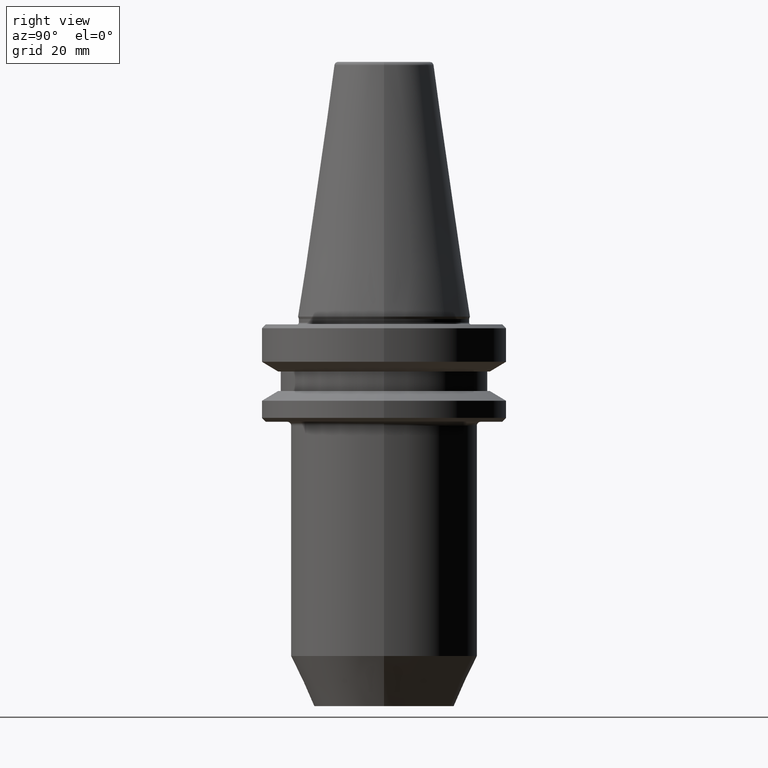
[diagram: clean part render]
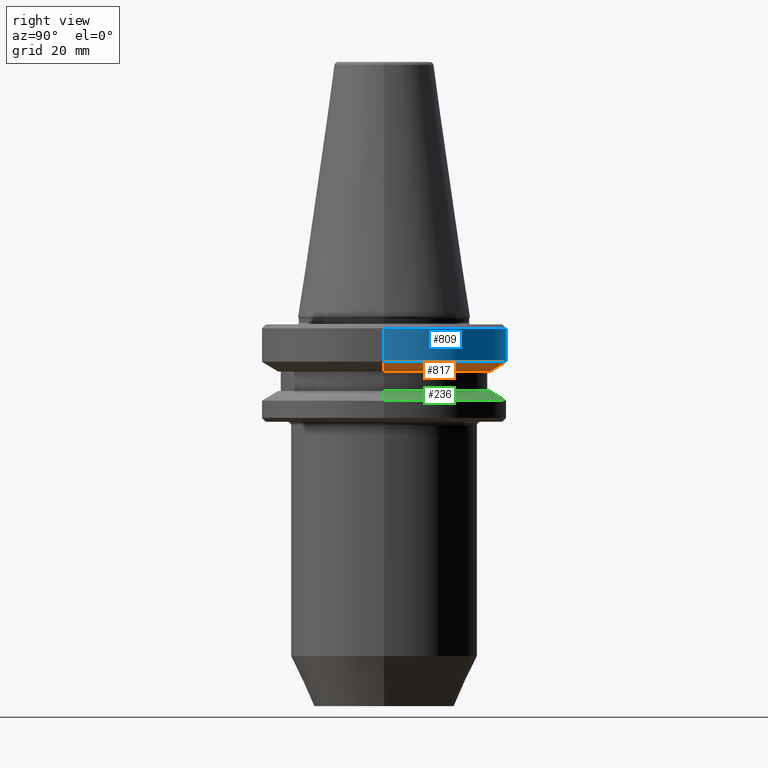
[diagram: same view with three faces highlighted in distinct colors, each labeled with its STEP entity id]
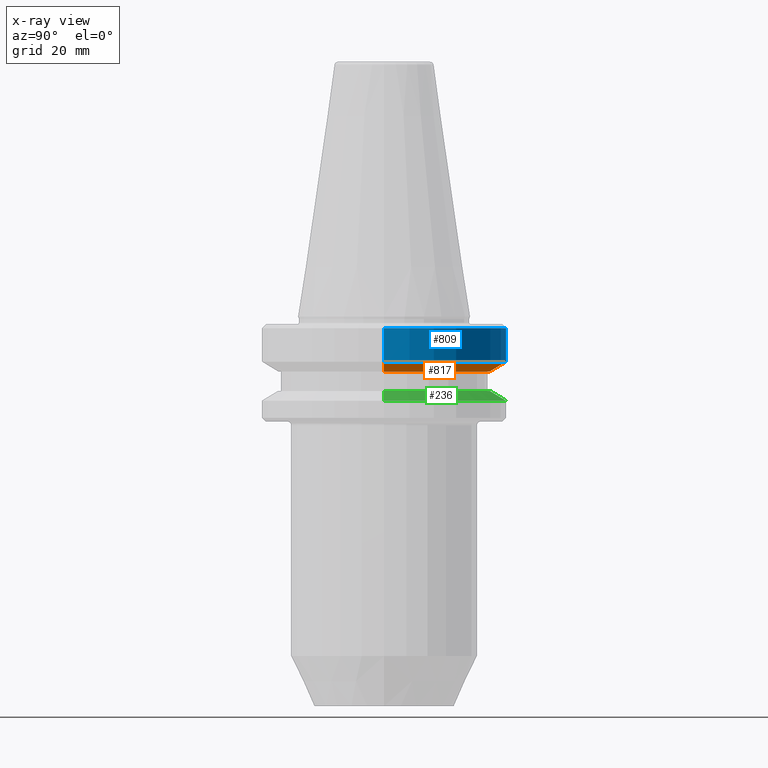
[diagram: x-ray of the same camera — body ghosted, the three highlighted faces saturated]
A machine part, right view with three faces highlighted in distinct colors.
The next image is the same camera in x-ray (body ghosted, the three faces saturated) — at least one of them is partly hidden behind the body in this view.
Their STEP definitions:

[orange] entity #817 — the highlighted conical surface has half-angle 60 deg.
#9 = CARTESIAN_POINT ( 'NONE',  ( 31.49999999999986100, 0.0000000000000000000, -10.91114478202370800 ) ) ;
#26 = VERTEX_POINT ( 'NONE', #827 ) ;
#28 = ORIENTED_EDGE ( 'NONE', *, *, #343, .T. ) ;
#61 = CARTESIAN_POINT ( 'NONE',  ( 0.0000000000000000000, 0.0000000000000000000, -13.41128678834002700 ) ) ;
#101 = CARTESIAN_POINT ( 'NONE',  ( -27.16962701892278200, 3.327319676275122900E-015, -13.41128678834002700 ) ) ;
#122 = DIRECTION ( 'NONE',  ( -0.0000000000000000000, -0.0000000000000000000, 1.000000000000000000 ) ) ;
#135 = AXIS2_PLACEMENT_3D ( 'NONE', #944, #403, #776 ) ;
#151 = DIRECTION ( 'NONE',  ( 1.000000000000000000, 0.0000000000000000000, 0.0000000000000000000 ) ) ;
#193 = VERTEX_POINT ( 'NONE', #906 ) ;
#242 = DIRECTION ( 'NONE',  ( -0.0000000000000000000, -0.0000000000000000000, 1.000000000000000000 ) ) ;
#248 = ORIENTED_EDGE ( 'NONE', *, *, #270, .F. ) ;
#249 = LINE ( 'NONE', #691, #658 ) ;
#254 = CARTESIAN_POINT ( 'NONE',  ( 27.16962701892278200, 0.0000000000000000000, -13.41128678834002700 ) ) ;
#270 = EDGE_CURVE ( 'NONE', #587, #193, #411, .T. ) ;
#343 = EDGE_CURVE ( 'NONE', #372, #26, #970, .T. ) ;
#369 = AXIS2_PLACEMENT_3D ( 'NONE', #61, #122, #779 ) ;
#372 = VERTEX_POINT ( 'NONE', #254 ) ;
#402 = CONICAL_SURFACE ( 'NONE', #135, 27.16962701892278200, 1.047197551196600300 ) ;
#403 = DIRECTION ( 'NONE',  ( -0.0000000000000000000, -0.0000000000000000000, 1.000000000000000000 ) ) ;
#411 = CIRCLE ( 'NONE', #1004, 31.49999999999986100 ) ;
#454 = DIRECTION ( 'NONE',  ( -0.8660254037844398200, 1.060575238724908400E-016, 0.4999999999999977200 ) ) ;
#587 = VERTEX_POINT ( 'NONE', #9 ) ;
#653 = ORIENTED_EDGE ( 'NONE', *, *, #804, .F. ) ;
#658 = VECTOR ( 'NONE', #781, 1000.000000000000100 ) ;
#691 = CARTESIAN_POINT ( 'NONE',  ( 27.16962701892278200, 0.0000000000000000000, -13.41128678834002700 ) ) ;
#694 = EDGE_LOOP ( 'NONE', ( #28, #717, #248, #653 ) ) ;
#717 = ORIENTED_EDGE ( 'NONE', *, *, #869, .T. ) ;
#737 = VECTOR ( 'NONE', #454, 1000.000000000000100 ) ;
#776 = DIRECTION ( 'NONE',  ( 1.000000000000000000, 0.0000000000000000000, 0.0000000000000000000 ) ) ;
#779 = DIRECTION ( 'NONE',  ( 1.000000000000000000, 0.0000000000000000000, 0.0000000000000000000 ) ) ;
#781 = DIRECTION ( 'NONE',  ( 0.8660254037844398200, 0.0000000000000000000, 0.4999999999999977200 ) ) ;
#804 = EDGE_CURVE ( 'NONE', #372, #587, #249, .T. ) ;
#817 = ADVANCED_FACE ( 'NONE', ( #895 ), #402, .T. ) ;
#827 = CARTESIAN_POINT ( 'NONE',  ( -27.16962701892278200, 3.592478546794634700E-015, -13.41128678834002700 ) ) ;
#869 = EDGE_CURVE ( 'NONE', #26, #193, #949, .T. ) ;
#895 = FACE_OUTER_BOUND ( 'NONE', #694, .T. ) ;
#906 = CARTESIAN_POINT ( 'NONE',  ( -31.49999999999986100, 3.857637417314145300E-015, -10.91114478202370800 ) ) ;
#944 = CARTESIAN_POINT ( 'NONE',  ( 0.0000000000000000000, 0.0000000000000000000, -13.41128678834002700 ) ) ;
#949 = LINE ( 'NONE', #101, #737 ) ;
#970 = CIRCLE ( 'NONE', #369, 27.16962701892278200 ) ;
#1004 = AXIS2_PLACEMENT_3D ( 'NONE', #1040, #242, #151 ) ;
#1040 = CARTESIAN_POINT ( 'NONE',  ( 0.0000000000000000000, 0.0000000000000000000, -10.91114478202370800 ) ) ;

[blue] entity #809 — the highlighted cylindrical surface (partial cylindrical patch) has radius 31.5 mm, axis along (-0, -0, 1).
#9 = CARTESIAN_POINT ( 'NONE',  ( 31.49999999999986100, 0.0000000000000000000, -10.91114478202370800 ) ) ;
#25 = LINE ( 'NONE', #664, #673 ) ;
#64 = DIRECTION ( 'NONE',  ( -0.0000000000000000000, -0.0000000000000000000, 1.000000000000000000 ) ) ;
#114 = CIRCLE ( 'NONE', #324, 31.49999999999986100 ) ;
#125 = CARTESIAN_POINT ( 'NONE',  ( -31.49999999999986100, 3.857637417314145300E-015, -2.311286788340083400 ) ) ;
#127 = AXIS2_PLACEMENT_3D ( 'NONE', #397, #702, #1008 ) ;
#151 = DIRECTION ( 'NONE',  ( 1.000000000000000000, 0.0000000000000000000, 0.0000000000000000000 ) ) ;
#180 = DIRECTION ( 'NONE',  ( 1.000000000000000000, 0.0000000000000000000, 0.0000000000000000000 ) ) ;
#186 = CARTESIAN_POINT ( 'NONE',  ( 31.49999999999986100, 0.0000000000000000000, -2.311286788340083400 ) ) ;
#193 = VERTEX_POINT ( 'NONE', #906 ) ;
#242 = DIRECTION ( 'NONE',  ( -0.0000000000000000000, -0.0000000000000000000, 1.000000000000000000 ) ) ;
#259 = ORIENTED_EDGE ( 'NONE', *, *, #458, .F. ) ;
#270 = EDGE_CURVE ( 'NONE', #587, #193, #411, .T. ) ;
#276 = ORIENTED_EDGE ( 'NONE', *, *, #385, .T. ) ;
#324 = AXIS2_PLACEMENT_3D ( 'NONE', #711, #829, #180 ) ;
#385 = EDGE_CURVE ( 'NONE', #193, #926, #720, .T. ) ;
#397 = CARTESIAN_POINT ( 'NONE',  ( 0.0000000000000000000, 0.0000000000000000000, 82.74845858742440900 ) ) ;
#411 = CIRCLE ( 'NONE', #1004, 31.49999999999986100 ) ;
#455 = FACE_OUTER_BOUND ( 'NONE', #942, .T. ) ;
#458 = EDGE_CURVE ( 'NONE', #587, #964, #25, .T. ) ;
#464 = ORIENTED_EDGE ( 'NONE', *, *, #270, .T. ) ;
#467 = EDGE_CURVE ( 'NONE', #964, #926, #114, .T. ) ;
#490 = ORIENTED_EDGE ( 'NONE', *, *, #467, .F. ) ;
#587 = VERTEX_POINT ( 'NONE', #9 ) ;
#634 = DIRECTION ( 'NONE',  ( -0.0000000000000000000, -0.0000000000000000000, 1.000000000000000000 ) ) ;
#664 = CARTESIAN_POINT ( 'NONE',  ( 31.49999999999986100, 0.0000000000000000000, 82.74845858742440900 ) ) ;
#673 = VECTOR ( 'NONE', #64, 1000.000000000000000 ) ;
#702 = DIRECTION ( 'NONE',  ( -0.0000000000000000000, -0.0000000000000000000, 1.000000000000000000 ) ) ;
#711 = CARTESIAN_POINT ( 'NONE',  ( 0.0000000000000000000, 0.0000000000000000000, -2.311286788340083400 ) ) ;
#720 = LINE ( 'NONE', #903, #936 ) ;
#809 = ADVANCED_FACE ( 'NONE', ( #455 ), #841, .T. ) ;
#829 = DIRECTION ( 'NONE',  ( -0.0000000000000000000, -0.0000000000000000000, 1.000000000000000000 ) ) ;
#841 = CYLINDRICAL_SURFACE ( 'NONE', #127, 31.49999999999986100 ) ;
#903 = CARTESIAN_POINT ( 'NONE',  ( -31.49999999999986100, 3.857637417314145300E-015, 82.74845858742440900 ) ) ;
#906 = CARTESIAN_POINT ( 'NONE',  ( -31.49999999999986100, 3.857637417314145300E-015, -10.91114478202370800 ) ) ;
#926 = VERTEX_POINT ( 'NONE', #125 ) ;
#936 = VECTOR ( 'NONE', #634, 1000.000000000000000 ) ;
#942 = EDGE_LOOP ( 'NONE', ( #464, #276, #490, #259 ) ) ;
#964 = VERTEX_POINT ( 'NONE', #186 ) ;
#1004 = AXIS2_PLACEMENT_3D ( 'NONE', #1040, #242, #151 ) ;
#1008 = DIRECTION ( 'NONE',  ( 1.000000000000000000, 0.0000000000000000000, 0.0000000000000000000 ) ) ;
#1040 = CARTESIAN_POINT ( 'NONE',  ( 0.0000000000000000000, 0.0000000000000000000, -10.91114478202370800 ) ) ;

[green] entity #236 — the highlighted conical surface has half-angle 60 deg.
#50 = CARTESIAN_POINT ( 'NONE',  ( 27.16962701892167300, 3.592478546794586600E-015, -18.41128678844344800 ) ) ;
#205 = CARTESIAN_POINT ( 'NONE',  ( 0.0000000000000000000, 0.0000000000000000000, -20.91142879476059900 ) ) ;
#236 = ADVANCED_FACE ( 'NONE', ( #462 ), #621, .T. ) ;
#273 = AXIS2_PLACEMENT_3D ( 'NONE', #205, #684, #275 ) ;
#275 = DIRECTION ( 'NONE',  ( 1.000000000000000000, 0.0000000000000000000, 0.0000000000000000000 ) ) ;
#295 = AXIS2_PLACEMENT_3D ( 'NONE', #520, #934, #360 ) ;
#318 = DIRECTION ( 'NONE',  ( -0.8660254037844400400, 0.0000000000000000000, -0.4999999999999976100 ) ) ;
#360 = DIRECTION ( 'NONE',  ( 1.000000000000000000, 0.0000000000000000000, 0.0000000000000000000 ) ) ;
#382 = ORIENTED_EDGE ( 'NONE', *, *, #433, .F. ) ;
#413 = AXIS2_PLACEMENT_3D ( 'NONE', #967, #800, #1000 ) ;
#433 = EDGE_CURVE ( 'NONE', #1002, #900, #493, .T. ) ;
#462 = FACE_OUTER_BOUND ( 'NONE', #607, .T. ) ;
#481 = CARTESIAN_POINT ( 'NONE',  ( -27.16962701892167300, 0.0000000000000000000, -18.41128678844344800 ) ) ;
#493 = LINE ( 'NONE', #947, #918 ) ;
#500 = EDGE_CURVE ( 'NONE', #523, #1002, #1030, .T. ) ;
#520 = CARTESIAN_POINT ( 'NONE',  ( 0.0000000000000000000, 0.0000000000000000000, -18.41128678844344800 ) ) ;
#523 = VERTEX_POINT ( 'NONE', #50 ) ;
#542 = EDGE_CURVE ( 'NONE', #890, #900, #586, .T. ) ;
#586 = CIRCLE ( 'NONE', #273, 31.50000000000019500 ) ;
#607 = EDGE_LOOP ( 'NONE', ( #676, #904, #806, #382 ) ) ;
#621 = CONICAL_SURFACE ( 'NONE', #413, 31.50000000000019500, 1.047197551196600500 ) ;
#638 = DIRECTION ( 'NONE',  ( 0.8660254037844400400, 1.060575238724908600E-016, -0.4999999999999976100 ) ) ;
#676 = ORIENTED_EDGE ( 'NONE', *, *, #500, .F. ) ;
#684 = DIRECTION ( 'NONE',  ( -0.0000000000000000000, -0.0000000000000000000, 1.000000000000000000 ) ) ;
#689 = VECTOR ( 'NONE', #638, 1000.000000000000000 ) ;
#773 = CARTESIAN_POINT ( 'NONE',  ( 31.50000000000019500, 3.857637417314186400E-015, -20.91142879476059900 ) ) ;
#798 = CARTESIAN_POINT ( 'NONE',  ( 31.50000000000019500, 0.0000000000000000000, -20.91142879476059900 ) ) ;
#800 = DIRECTION ( 'NONE',  ( 0.0000000000000000000, 0.0000000000000000000, -1.000000000000000000 ) ) ;
#806 = ORIENTED_EDGE ( 'NONE', *, *, #542, .T. ) ;
#890 = VERTEX_POINT ( 'NONE', #798 ) ;
#896 = CARTESIAN_POINT ( 'NONE',  ( -31.50000000000019500, 3.857637417314186400E-015, -20.91142879476059900 ) ) ;
#900 = VERTEX_POINT ( 'NONE', #896 ) ;
#904 = ORIENTED_EDGE ( 'NONE', *, *, #917, .T. ) ;
#911 = LINE ( 'NONE', #773, #689 ) ;
#917 = EDGE_CURVE ( 'NONE', #523, #890, #911, .T. ) ;
#918 = VECTOR ( 'NONE', #318, 1000.000000000000000 ) ;
#934 = DIRECTION ( 'NONE',  ( -0.0000000000000000000, -0.0000000000000000000, 1.000000000000000000 ) ) ;
#947 = CARTESIAN_POINT ( 'NONE',  ( -31.50000000000019500, 0.0000000000000000000, -20.91142879476059900 ) ) ;
#967 = CARTESIAN_POINT ( 'NONE',  ( 0.0000000000000000000, 0.0000000000000000000, -20.91142879476059900 ) ) ;
#1000 = DIRECTION ( 'NONE',  ( -1.000000000000000000, 0.0000000000000000000, 0.0000000000000000000 ) ) ;
#1002 = VERTEX_POINT ( 'NONE', #481 ) ;
#1030 = CIRCLE ( 'NONE', #295, 27.16962701892167300 ) ;